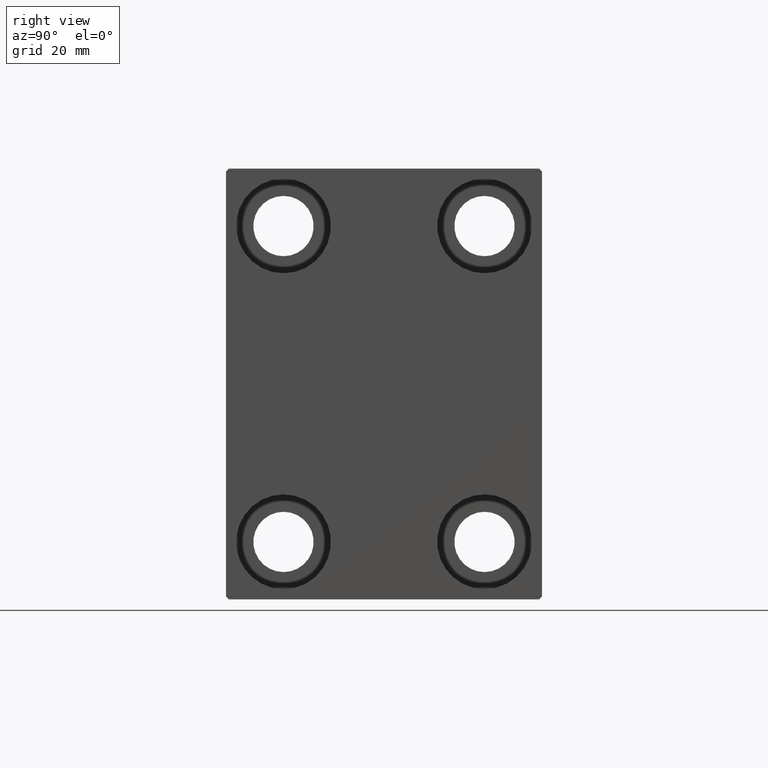
[diagram: clean part render]
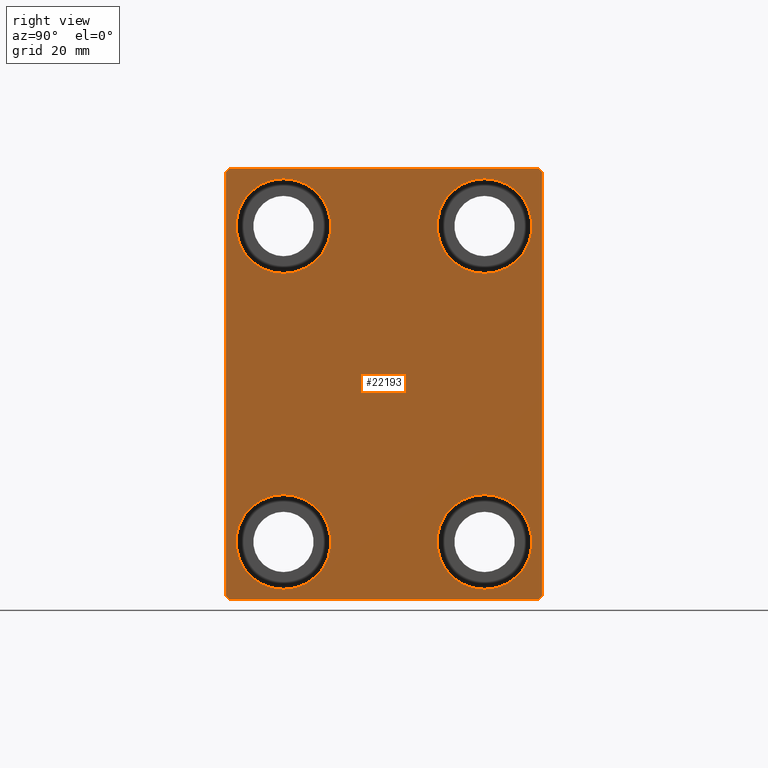
[diagram: same view with one face highlighted and labeled with its STEP entity id]
A machine part, right view. The second image highlights one B-rep face of the part: STEP entity #22193.
In plain terms, the highlighted planar face has unit normal (1, 0, 0).
Its self-contained STEP definition (entity closure, byte-faithful):
#452 = ORIENTED_EDGE ( 'NONE', *, *, #17328, .T. ) ;
#482 = EDGE_CURVE ( 'NONE', #29867, #8431, #42864, .T. ) ;
#935 = EDGE_CURVE ( 'NONE', #41392, #20111, #23011, .T. ) ;
#1286 = ORIENTED_EDGE ( 'NONE', *, *, #23604, .T. ) ;
#1890 = FACE_BOUND ( 'NONE', #9008, .T. ) ;
#1924 = DIRECTION ( 'NONE',  ( 0.000000000000000000, -9.251858538542970348E-17, 1.000000000000000000 ) ) ;
#1984 = CIRCLE ( 'NONE', #39645, 8.249999999999992895 ) ;
#2395 = EDGE_CURVE ( 'NONE', #42912, #43771, #8865, .T. ) ;
#2632 = AXIS2_PLACEMENT_3D ( 'NONE', #37737, #3716, #9948 ) ;
#2763 = ORIENTED_EDGE ( 'NONE', *, *, #19144, .T. ) ;
#3018 = VECTOR ( 'NONE', #4573, 1000.000000000000114 ) ;
#3716 = DIRECTION ( 'NONE',  ( -1.000000000000000000, -0.000000000000000000, -0.000000000000000000 ) ) ;
#4215 = VECTOR ( 'NONE', #8230, 1000.000000000000000 ) ;
#4378 = ORIENTED_EDGE ( 'NONE', *, *, #34415, .T. ) ;
#4573 = DIRECTION ( 'NONE',  ( -0.000000000000000000, 0.7071067811865474617, 0.7071067811865474617 ) ) ;
#5418 = EDGE_LOOP ( 'NONE', ( #42724, #12329 ) ) ;
#5548 = CARTESIAN_POINT ( 'NONE',  ( 75.00000000000000000, 32.25000000000019185, 32.24999999999975131 ) ) ;
#5828 = CARTESIAN_POINT ( 'NONE',  ( 75.00000000000000000, -27.50000000000000355, 37.50000000000000000 ) ) ;
#6432 = CARTESIAN_POINT ( 'NONE',  ( 75.00000000000000000, -17.49999999999999645, 35.74999999999999289 ) ) ;
#7068 = CARTESIAN_POINT ( 'NONE',  ( 75.00000000000000000, -17.49999999999999645, 27.49999999999999645 ) ) ;
#7075 = AXIS2_PLACEMENT_3D ( 'NONE', #29369, #12458, #39594 ) ;
#7126 = DIRECTION ( 'NONE',  ( -1.000000000000000000, -0.000000000000000000, -0.000000000000000000 ) ) ;
#7307 = EDGE_LOOP ( 'NONE', ( #16349, #1286, #10777, #452, #37252, #32551, #2763, #34688 ) ) ;
#7367 = DIRECTION ( 'NONE',  ( 0.000000000000000000, 0.000000000000000000, 1.000000000000000000 ) ) ;
#7705 = CARTESIAN_POINT ( 'NONE',  ( 75.00000000000000000, 27.49999999999999645, 37.00000000000001421 ) ) ;
#8230 = DIRECTION ( 'NONE',  ( -0.000000000000000000, -0.7071067811865426878, 0.7071067811865524577 ) ) ;
#8431 = VERTEX_POINT ( 'NONE', #21707 ) ;
#8483 = LINE ( 'NONE', #41421, #27349 ) ;
#8562 = FACE_OUTER_BOUND ( 'NONE', #7307, .T. ) ;
#8653 = DIRECTION ( 'NONE',  ( 0.000000000000000000, -1.000000000000000000, -1.261617073437677999E-16 ) ) ;
#8865 = LINE ( 'NONE', #39131, #9526 ) ;
#9008 = EDGE_LOOP ( 'NONE', ( #9573, #25965 ) ) ;
#9097 = LINE ( 'NONE', #5548, #4215 ) ;
#9211 = FACE_BOUND ( 'NONE', #5418, .T. ) ;
#9477 = LINE ( 'NONE', #36624, #38033 ) ;
#9526 = VECTOR ( 'NONE', #8653, 1000.000000000000000 ) ;
#9573 = ORIENTED_EDGE ( 'NONE', *, *, #27130, .T. ) ;
#9868 = EDGE_CURVE ( 'NONE', #28359, #35591, #22742, .T. ) ;
#9948 = DIRECTION ( 'NONE',  ( 0.000000000000000000, 0.000000000000000000, 1.000000000000000000 ) ) ;
#10339 = ORIENTED_EDGE ( 'NONE', *, *, #10527, .T. ) ;
#10527 = EDGE_CURVE ( 'NONE', #29314, #38928, #29533, .T. ) ;
#10777 = ORIENTED_EDGE ( 'NONE', *, *, #9868, .T. ) ;
#11137 = CIRCLE ( 'NONE', #2632, 8.250000000000000000 ) ;
#12329 = ORIENTED_EDGE ( 'NONE', *, *, #482, .T. ) ;
#12365 = CARTESIAN_POINT ( 'NONE',  ( 75.00000000000000000, -32.25000000000000711, 32.25000000000000711 ) ) ;
#12458 = DIRECTION ( 'NONE',  ( -1.000000000000000000, -0.000000000000000000, -0.000000000000000000 ) ) ;
#13076 = DIRECTION ( 'NONE',  ( 0.000000000000000000, 0.000000000000000000, 1.000000000000000000 ) ) ;
#15037 = PLANE ( 'NONE',  #33871 ) ;
#16045 = EDGE_CURVE ( 'NONE', #24400, #20393, #8483, .T. ) ;
#16349 = ORIENTED_EDGE ( 'NONE', *, *, #2395, .T. ) ;
#16360 = CARTESIAN_POINT ( 'NONE',  ( 75.00000000000000000, 17.49999999999999645, -19.25000000000000355 ) ) ;
#16638 = VERTEX_POINT ( 'NONE', #22127 ) ;
#16655 = CARTESIAN_POINT ( 'NONE',  ( 75.00000000000000000, -17.49999999999999645, 27.49999999999999645 ) ) ;
#16772 = AXIS2_PLACEMENT_3D ( 'NONE', #34408, #31279, #17304 ) ;
#17111 = DIRECTION ( 'NONE',  ( -1.000000000000000000, -0.000000000000000000, -0.000000000000000000 ) ) ;
#17304 = DIRECTION ( 'NONE',  ( 0.000000000000000000, 0.000000000000000000, 1.000000000000000000 ) ) ;
#17328 = EDGE_CURVE ( 'NONE', #35591, #24400, #43796, .T. ) ;
#18286 = DIRECTION ( 'NONE',  ( -1.000000000000000000, -0.000000000000000000, -0.000000000000000000 ) ) ;
#18421 = LINE ( 'NONE', #12365, #40263 ) ;
#19144 = EDGE_CURVE ( 'NONE', #16638, #37675, #9477, .T. ) ;
#19475 = CARTESIAN_POINT ( 'NONE',  ( 75.00000000000000000, 27.00000000000000355, -37.50000000000000000 ) ) ;
#19775 = VERTEX_POINT ( 'NONE', #6432 ) ;
#19785 = CARTESIAN_POINT ( 'NONE',  ( 75.00000000000000000, -17.49999999999999645, 19.25000000000000000 ) ) ;
#20000 = AXIS2_PLACEMENT_3D ( 'NONE', #16655, #41082, #13076 ) ;
#20111 = VERTEX_POINT ( 'NONE', #36855 ) ;
#20393 = VERTEX_POINT ( 'NONE', #19475 ) ;
#20958 = CARTESIAN_POINT ( 'NONE',  ( 75.00000000000000000, -17.50000000000000355, -35.75000000000000711 ) ) ;
#21707 = CARTESIAN_POINT ( 'NONE',  ( 75.00000000000000000, 17.49999999999999645, -35.75000000000000711 ) ) ;
#22127 = CARTESIAN_POINT ( 'NONE',  ( 75.00000000000000000, 27.50000000000000355, -37.00000000000000000 ) ) ;
#22193 = ADVANCED_FACE ( 'NONE', ( #9211, #1890, #39251, #22799, #8562 ), #15037, .T. ) ;
#22544 = EDGE_LOOP ( 'NONE', ( #4378, #10339 ) ) ;
#22742 = LINE ( 'NONE', #5828, #40135 ) ;
#22744 = EDGE_CURVE ( 'NONE', #8431, #29867, #11137, .T. ) ;
#22799 = FACE_BOUND ( 'NONE', #22544, .T. ) ;
#23011 = CIRCLE ( 'NONE', #31504, 8.249999999999992895 ) ;
#23456 = CIRCLE ( 'NONE', #29853, 8.249999999999992895 ) ;
#23604 = EDGE_CURVE ( 'NONE', #43771, #28359, #18421, .T. ) ;
#23838 = VECTOR ( 'NONE', #37114, 1000.000000000000114 ) ;
#24400 = VERTEX_POINT ( 'NONE', #26955 ) ;
#25965 = ORIENTED_EDGE ( 'NONE', *, *, #39560, .T. ) ;
#26115 = CARTESIAN_POINT ( 'NONE',  ( 75.00000000000000000, 17.49999999999999645, -27.50000000000000355 ) ) ;
#26955 = CARTESIAN_POINT ( 'NONE',  ( 75.00000000000000000, -27.00000000000000355, -37.50000000000000000 ) ) ;
#27130 = EDGE_CURVE ( 'NONE', #37640, #19775, #1984, .T. ) ;
#27349 = VECTOR ( 'NONE', #34755, 1000.000000000000000 ) ;
#27693 = CIRCLE ( 'NONE', #7075, 8.250000000000000000 ) ;
#27956 = AXIS2_PLACEMENT_3D ( 'NONE', #26115, #43002, #43231 ) ;
#28160 = CARTESIAN_POINT ( 'NONE',  ( 75.00000000000000000, 32.25000000000000000, -32.25000000000000000 ) ) ;
#28230 = ORIENTED_EDGE ( 'NONE', *, *, #36317, .T. ) ;
#28359 = VERTEX_POINT ( 'NONE', #38629 ) ;
#28597 = CARTESIAN_POINT ( 'NONE',  ( 75.00000000000000000, 0.000000000000000000, 0.000000000000000000 ) ) ;
#29314 = VERTEX_POINT ( 'NONE', #41259 ) ;
#29369 = CARTESIAN_POINT ( 'NONE',  ( 75.00000000000000000, -17.50000000000000355, -27.50000000000000355 ) ) ;
#29533 = CIRCLE ( 'NONE', #16772, 8.250000000000000000 ) ;
#29853 = AXIS2_PLACEMENT_3D ( 'NONE', #34949, #18286, #7367 ) ;
#29867 = VERTEX_POINT ( 'NONE', #16360 ) ;
#30899 = ORIENTED_EDGE ( 'NONE', *, *, #935, .T. ) ;
#31279 = DIRECTION ( 'NONE',  ( -1.000000000000000000, -0.000000000000000000, -0.000000000000000000 ) ) ;
#31504 = AXIS2_PLACEMENT_3D ( 'NONE', #43843, #7126, #40496 ) ;
#31930 = LINE ( 'NONE', #28160, #3018 ) ;
#32551 = ORIENTED_EDGE ( 'NONE', *, *, #42838, .T. ) ;
#32974 = DIRECTION ( 'NONE',  ( 0.000000000000000000, 0.000000000000000000, -1.000000000000000000 ) ) ;
#33575 = CARTESIAN_POINT ( 'NONE',  ( 75.00000000000000000, -32.25000000000000000, -32.25000000000000000 ) ) ;
#33871 = AXIS2_PLACEMENT_3D ( 'NONE', #28597, #42165, #35494 ) ;
#34408 = CARTESIAN_POINT ( 'NONE',  ( 75.00000000000000000, -17.50000000000000355, -27.50000000000000355 ) ) ;
#34415 = EDGE_CURVE ( 'NONE', #38928, #29314, #27693, .T. ) ;
#34688 = ORIENTED_EDGE ( 'NONE', *, *, #35435, .T. ) ;
#34755 = DIRECTION ( 'NONE',  ( 0.000000000000000000, 1.000000000000000000, 0.000000000000000000 ) ) ;
#34949 = CARTESIAN_POINT ( 'NONE',  ( 75.00000000000000000, 17.50000000000000355, 27.49999999999999645 ) ) ;
#35435 = EDGE_CURVE ( 'NONE', #37675, #42912, #9097, .T. ) ;
#35494 = DIRECTION ( 'NONE',  ( 0.000000000000000000, 0.000000000000000000, -1.000000000000000000 ) ) ;
#35591 = VERTEX_POINT ( 'NONE', #42486 ) ;
#36317 = EDGE_CURVE ( 'NONE', #20111, #41392, #23456, .T. ) ;
#36624 = CARTESIAN_POINT ( 'NONE',  ( 75.00000000000000000, 27.50000000000000355, -37.50000000000000000 ) ) ;
#36855 = CARTESIAN_POINT ( 'NONE',  ( 75.00000000000000000, 17.50000000000000355, 35.74999999999999289 ) ) ;
#37114 = DIRECTION ( 'NONE',  ( -0.000000000000000000, 0.7071067811865474617, -0.7071067811865474617 ) ) ;
#37224 = CARTESIAN_POINT ( 'NONE',  ( 75.00000000000000000, 17.50000000000000355, 19.25000000000000000 ) ) ;
#37252 = ORIENTED_EDGE ( 'NONE', *, *, #16045, .T. ) ;
#37640 = VERTEX_POINT ( 'NONE', #19785 ) ;
#37675 = VERTEX_POINT ( 'NONE', #7705 ) ;
#37737 = CARTESIAN_POINT ( 'NONE',  ( 75.00000000000000000, 17.49999999999999645, -27.50000000000000355 ) ) ;
#38033 = VECTOR ( 'NONE', #1924, 1000.000000000000000 ) ;
#38629 = CARTESIAN_POINT ( 'NONE',  ( 75.00000000000000000, -27.50000000000000355, 37.00000000000001421 ) ) ;
#38928 = VERTEX_POINT ( 'NONE', #20958 ) ;
#39131 = CARTESIAN_POINT ( 'NONE',  ( 75.00000000000000000, 27.49999999999999645, 37.50000000000000711 ) ) ;
#39251 = FACE_BOUND ( 'NONE', #39319, .T. ) ;
#39319 = EDGE_LOOP ( 'NONE', ( #30899, #28230 ) ) ;
#39560 = EDGE_CURVE ( 'NONE', #19775, #37640, #39830, .T. ) ;
#39594 = DIRECTION ( 'NONE',  ( 0.000000000000000000, 0.000000000000000000, 1.000000000000000000 ) ) ;
#39645 = AXIS2_PLACEMENT_3D ( 'NONE', #7068, #17111, #40658 ) ;
#39830 = CIRCLE ( 'NONE', #20000, 8.249999999999992895 ) ;
#40135 = VECTOR ( 'NONE', #32974, 1000.000000000000000 ) ;
#40263 = VECTOR ( 'NONE', #42196, 1000.000000000000114 ) ;
#40363 = CARTESIAN_POINT ( 'NONE',  ( 75.00000000000000000, -27.00000000000001776, 37.50000000000000000 ) ) ;
#40496 = DIRECTION ( 'NONE',  ( 0.000000000000000000, 0.000000000000000000, 1.000000000000000000 ) ) ;
#40658 = DIRECTION ( 'NONE',  ( 0.000000000000000000, 0.000000000000000000, 1.000000000000000000 ) ) ;
#41082 = DIRECTION ( 'NONE',  ( -1.000000000000000000, -0.000000000000000000, -0.000000000000000000 ) ) ;
#41209 = CARTESIAN_POINT ( 'NONE',  ( 75.00000000000000000, 27.00000000000001066, 37.50000000000000711 ) ) ;
#41259 = CARTESIAN_POINT ( 'NONE',  ( 75.00000000000000000, -17.50000000000000355, -19.25000000000000355 ) ) ;
#41392 = VERTEX_POINT ( 'NONE', #37224 ) ;
#41421 = CARTESIAN_POINT ( 'NONE',  ( 75.00000000000000000, -27.50000000000000355, -37.50000000000000000 ) ) ;
#42165 = DIRECTION ( 'NONE',  ( 1.000000000000000000, 0.000000000000000000, 0.000000000000000000 ) ) ;
#42196 = DIRECTION ( 'NONE',  ( 0.000000000000000000, -0.7071067811865474617, -0.7071067811865474617 ) ) ;
#42486 = CARTESIAN_POINT ( 'NONE',  ( 75.00000000000000000, -27.50000000000000355, -37.00000000000000000 ) ) ;
#42724 = ORIENTED_EDGE ( 'NONE', *, *, #22744, .T. ) ;
#42838 = EDGE_CURVE ( 'NONE', #20393, #16638, #31930, .T. ) ;
#42864 = CIRCLE ( 'NONE', #27956, 8.250000000000000000 ) ;
#42912 = VERTEX_POINT ( 'NONE', #41209 ) ;
#43002 = DIRECTION ( 'NONE',  ( -1.000000000000000000, -0.000000000000000000, -0.000000000000000000 ) ) ;
#43231 = DIRECTION ( 'NONE',  ( 0.000000000000000000, 0.000000000000000000, 1.000000000000000000 ) ) ;
#43771 = VERTEX_POINT ( 'NONE', #40363 ) ;
#43796 = LINE ( 'NONE', #33575, #23838 ) ;
#43843 = CARTESIAN_POINT ( 'NONE',  ( 75.00000000000000000, 17.50000000000000355, 27.49999999999999645 ) ) ;